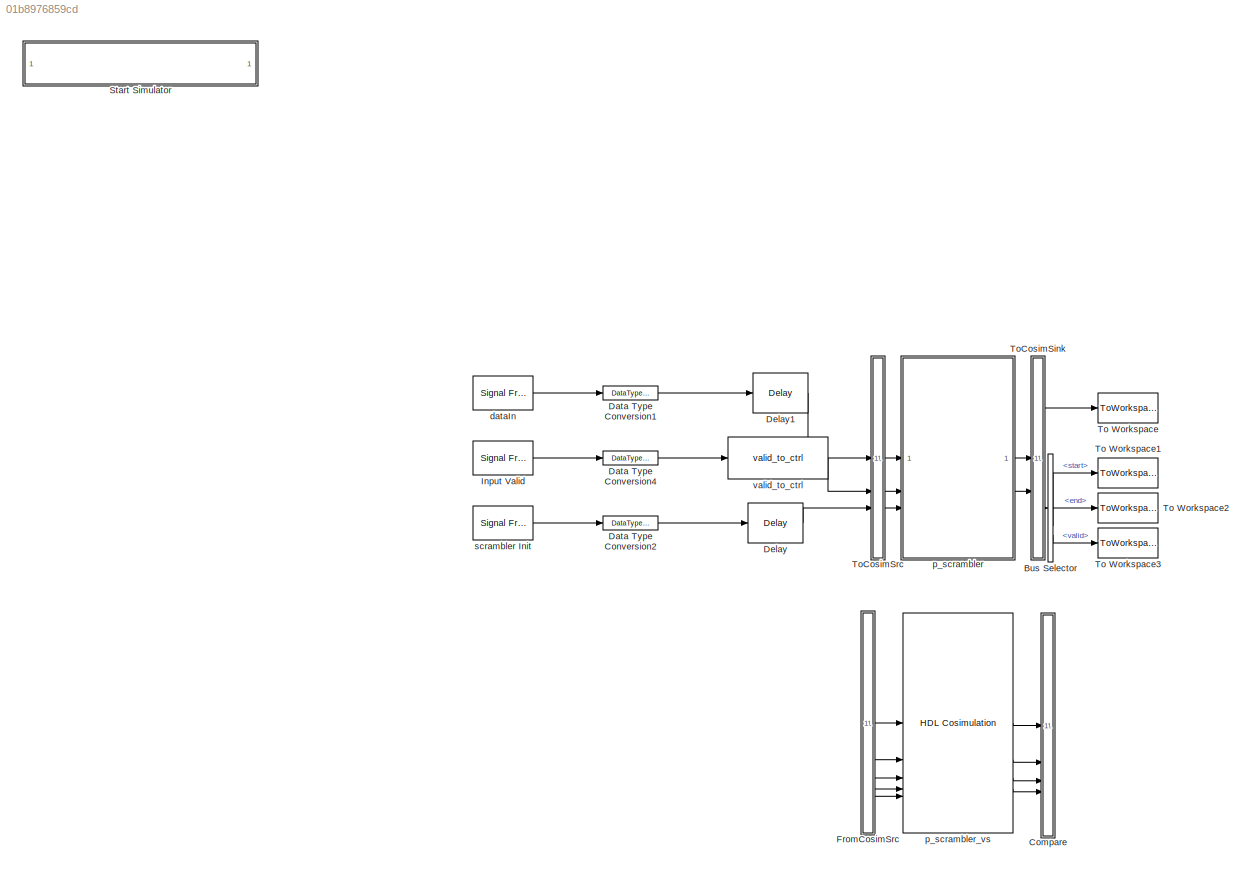
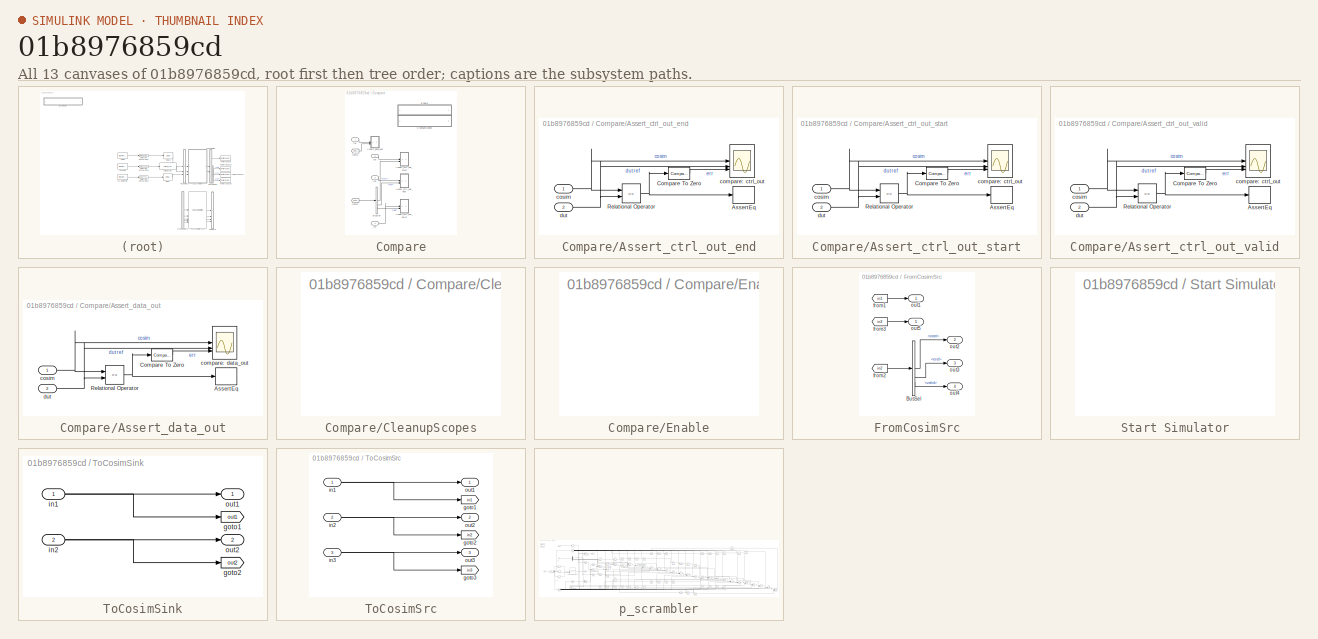
[diagram: thumbnail index - all 13 canvases of the model, root first then tree order]
MODEL slx_01b8976859cd
KIND model
CONFIG AbsTol = auto
CONFIG EnableMultiTasking = off
CONFIG FixedStep = auto
CONFIG MaxStep = auto
CONFIG MinStep = auto
CONFIG RelTol = 1e-3
CONFIG SampleTimeConstraint = Unconstrained
CONFIG SolverName = VariableStepAuto
CONFIG StartTime = 0.0
CONFIG StopTime = 10.0
BLOCK [BusSelector] Bus Selector
  OutputSignals = start,end,valid
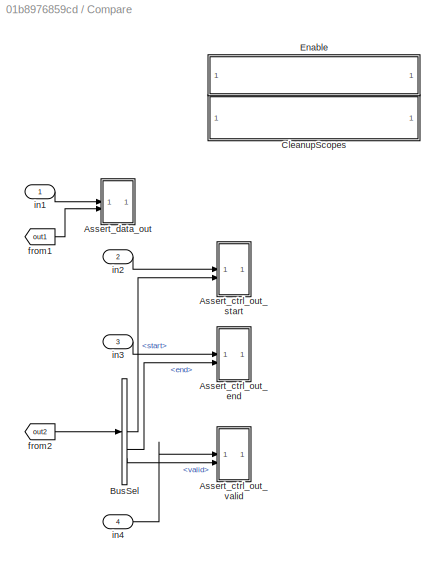
BLOCK [SubSystem] Compare
BLOCK [SubSystem] Compare/Assert_ctrl_out_end
  LibrarySourceBlock = hdlmdlgenlib/AssertEq
BLOCK [Assertion] Compare/Assert_ctrl_out_end/AssertEq
BLOCK [Reference] Compare/Assert_ctrl_out_end/Compare To Zero  REF=simulink/Logic and Bit
Operations/Compare
To Zero
  SourceBlock = simulink/Logic and Bit\nOperations/Compare\nTo Zero
  SourceType = Compare To Zero
BLOCK [RelationalOperator] Compare/Assert_ctrl_out_end/Relational Operator
  InputSameDT = off
  Operator = ==
  OutDataTypeStr = boolean
BLOCK [Scope] Compare/Assert_ctrl_out_end/compare: ctrl_out
  Floating = off
  NumInputPorts = 3
  ScopeSpecificationString = Simulink.scopes.TimeScopeBlockCfg('CurrentConfiguration', extmgr.ConfigurationSet(extmgr.Configuration('Core','General UI',true,'MessageLogAutoOpenMode','for warn/fail messages','ShowCloseAll',true,'ShowBringAllForward',true),extmgr.Configuration('Core','Source UI',true,'PlaybackToolbar',true),extmgr.Configuration('Sources','WiredSimulink',true,'PointsPerSignal',50000,'DataLoggingDecimation','1','...<+3577ch>  <repeated x4 — deduplicated; at blocks: compare: ctrl_out, compare: data_out>
BLOCK [Inport] Compare/Assert_ctrl_out_end/cosim
BLOCK [Inport] Compare/Assert_ctrl_out_end/dut
  Port = 2
BLOCK [SubSystem] Compare/Assert_ctrl_out_start
  LibrarySourceBlock = hdlmdlgenlib/AssertEq
BLOCK [Assertion] Compare/Assert_ctrl_out_start/AssertEq
BLOCK [Reference] Compare/Assert_ctrl_out_start/Compare To Zero  REF=simulink/Logic and Bit
Operations/Compare
To Zero
  SourceBlock = simulink/Logic and Bit\nOperations/Compare\nTo Zero
  SourceType = Compare To Zero
BLOCK [RelationalOperator] Compare/Assert_ctrl_out_start/Relational Operator
  InputSameDT = off
  Operator = ==
  OutDataTypeStr = boolean
BLOCK [Scope] Compare/Assert_ctrl_out_start/compare: ctrl_out
  Floating = off
  NumInputPorts = 3
BLOCK [Inport] Compare/Assert_ctrl_out_start/cosim
BLOCK [Inport] Compare/Assert_ctrl_out_start/dut
  Port = 2
BLOCK [SubSystem] Compare/Assert_ctrl_out_valid
  LibrarySourceBlock = hdlmdlgenlib/AssertEq
BLOCK [Assertion] Compare/Assert_ctrl_out_valid/AssertEq
BLOCK [Reference] Compare/Assert_ctrl_out_valid/Compare To Zero  REF=simulink/Logic and Bit
Operations/Compare
To Zero
  SourceBlock = simulink/Logic and Bit\nOperations/Compare\nTo Zero
  SourceType = Compare To Zero
BLOCK [RelationalOperator] Compare/Assert_ctrl_out_valid/Relational Operator
  InputSameDT = off
  Operator = ==
  OutDataTypeStr = boolean
BLOCK [Scope] Compare/Assert_ctrl_out_valid/compare: ctrl_out
  Floating = off
  NumInputPorts = 3
BLOCK [Inport] Compare/Assert_ctrl_out_valid/cosim
BLOCK [Inport] Compare/Assert_ctrl_out_valid/dut
  Port = 2
BLOCK [SubSystem] Compare/Assert_data_out
  LibrarySourceBlock = hdlmdlgenlib/AssertEq
BLOCK [Assertion] Compare/Assert_data_out/AssertEq
BLOCK [Reference] Compare/Assert_data_out/Compare To Zero  REF=simulink/Logic and Bit
Operations/Compare
To Zero
  SourceBlock = simulink/Logic and Bit\nOperations/Compare\nTo Zero
  SourceType = Compare To Zero
BLOCK [RelationalOperator] Compare/Assert_data_out/Relational Operator
  InputSameDT = off
  Operator = ==
  OutDataTypeStr = boolean
BLOCK [Scope] Compare/Assert_data_out/compare: data_out
  Floating = off
  NumInputPorts = 3
BLOCK [Inport] Compare/Assert_data_out/cosim
BLOCK [Inport] Compare/Assert_data_out/dut
  Port = 2
BLOCK [BusSelector] Compare/BusSel
  OutputSignals = start,end,valid
BLOCK [SubSystem] Compare/CleanupScopes
  OpenFcn = blkName = gcb; %self block\nidx = regexp(blkName, '/CleanupScopes$', 'once');\nblkParent = blkName(1:idx-1);\nblks=find_system(blkParent, 'LookUnderMasks', 'all','blocktype', 'Scope');\nfor itr = 1:length(blks)\n	 hScopeCfg = get_param(blks{itr},'ScopeConfiguration');\n	 hScopeCfg.Visible = ~ hScopeCfg.Visible;\nend\ndrawnow;
BLOCK [SubSystem] Compare/Enable
  OpenFcn = blkName = gcb;\nidx = regexp(blkName, '/Enable$', 'once');\nblkParent = blkName(1:idx-1);\nblks=find_system(blkParent, 'LookUnderMasks', 'all','blocktype', 'Assertion');\ne = get_param(blks{1}, 'Enabled');\nif strcmp(e, 'on'), f= 'off';, else, f = 'on';, end\nfor ii=1:length(blks), set_param(blks{ii}, 'Enabled', f);, end\nset_param(gcb, 'MaskDisplay',['fprintf(message(''hdlcoder:cosim:vnl_dblclick_assert...<+47ch>
BLOCK [From] Compare/from1
  GotoTag = out1
  TagVisibility = global
BLOCK [From] Compare/from2
  GotoTag = out2
  TagVisibility = global
BLOCK [Inport] Compare/in1
BLOCK [Inport] Compare/in2
  Port = 2
BLOCK [Inport] Compare/in3
  Port = 3
BLOCK [Inport] Compare/in4
  Port = 4
BLOCK [DataTypeConversion] Data Type Conversion1
  OutDataTypeStr = boolean
  RndMeth = Floor
  SaturateOnIntegerOverflow = off
BLOCK [DataTypeConversion] Data Type Conversion2
  OutDataTypeStr = boolean
  RndMeth = Floor
  SaturateOnIntegerOverflow = off
BLOCK [DataTypeConversion] Data Type Conversion4
  OutDataTypeStr = boolean
  RndMeth = Floor
  SaturateOnIntegerOverflow = off
BLOCK [Delay] Delay
  DelayLength = 1
  InitialCondition = 0
  InputPortMap = u0
  UseCircularBuffer = on
  UserDataPersistent = on
BLOCK [Delay] Delay1
  DelayLength = 1
  InitialCondition = 0
  InputPortMap = u0
  UseCircularBuffer = on
  UserDataPersistent = on
BLOCK [SubSystem] FromCosimSrc
BLOCK [BusSelector] FromCosimSrc/BusSel
  OutputSignals = start,end,valid
BLOCK [From] FromCosimSrc/from1
  GotoTag = in1
  TagVisibility = global
BLOCK [From] FromCosimSrc/from2
  GotoTag = in2
  TagVisibility = global
BLOCK [From] FromCosimSrc/from3
  GotoTag = in3
  TagVisibility = global
BLOCK [Outport] FromCosimSrc/out1
BLOCK [Outport] FromCosimSrc/out2
  Port = 2
BLOCK [Outport] FromCosimSrc/out3
  Port = 3
BLOCK [Outport] FromCosimSrc/out4
  Port = 4
BLOCK [Outport] FromCosimSrc/out5
  Port = 5
BLOCK [Reference] Input Valid  REF=dspsrcs4/Signal From
Workspace
  SourceBlock = dspsrcs4/Signal From\nWorkspace
  SourceType = Signal From Workspace
BLOCK [SubSystem] Start Simulator
  OpenFcn = cosimDirName = pwd;\ncd 'hdl_prj/hdlsrc/HDLPayloadScrambler';\n[s,r] = system('vivado -mode batch -source gm_HDLPayloadScrambler_vs.tcl','-echo');\ncd (cosimDirName);\nclear cosimDirName;\nif s\n   error('Failed to create Vivado HDL design DLL using script gm_HDLPayloadScrambler_vs.tcl.');\nend
BLOCK [ToWorkspace] To Workspace
  MaxDataPoints = inf
  SampleTime = 1/fs
  Save2DSignal = 2-D array (concatenate along first dimension)
  VariableName = dataOut
BLOCK [ToWorkspace] To Workspace1
  MaxDataPoints = inf
  SampleTime = 1/fs
  Save2DSignal = 2-D array (concatenate along first dimension)
  VariableName = startOut
BLOCK [ToWorkspace] To Workspace2
  MaxDataPoints = inf
  SampleTime = 1/fs
  Save2DSignal = 2-D array (concatenate along first dimension)
  VariableName = endOut
BLOCK [ToWorkspace] To Workspace3
  MaxDataPoints = inf
  SampleTime = 1/fs
  Save2DSignal = 2-D array (concatenate along first dimension)
  VariableName = validOut
BLOCK [SubSystem] ToCosimSink
BLOCK [Goto] ToCosimSink/goto1
  GotoTag = out1
  TagVisibility = global
BLOCK [Goto] ToCosimSink/goto2
  GotoTag = out2
  TagVisibility = global
BLOCK [Inport] ToCosimSink/in1
BLOCK [Inport] ToCosimSink/in2
  Port = 2
BLOCK [Outport] ToCosimSink/out1
BLOCK [Outport] ToCosimSink/out2
  Port = 2
BLOCK [SubSystem] ToCosimSrc
BLOCK [Goto] ToCosimSrc/goto1
  GotoTag = in1
  TagVisibility = global
BLOCK [Goto] ToCosimSrc/goto2
  GotoTag = in2
  TagVisibility = global
BLOCK [Goto] ToCosimSrc/goto3
  GotoTag = in3
  TagVisibility = global
BLOCK [Inport] ToCosimSrc/in1
BLOCK [Inport] ToCosimSrc/in2
  Port = 2
BLOCK [Inport] ToCosimSrc/in3
  Port = 3
BLOCK [Outport] ToCosimSrc/out1
BLOCK [Outport] ToCosimSrc/out2
  Port = 2
BLOCK [Outport] ToCosimSrc/out3
  Port = 3
BLOCK [Reference] dataIn  REF=dspsrcs4/Signal From
Workspace
  SourceBlock = dspsrcs4/Signal From\nWorkspace
  SourceType = Signal From Workspace
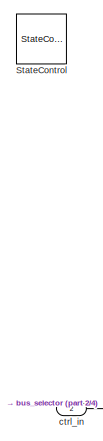
[diagram: p_scrambler - part 1/4, top left region]
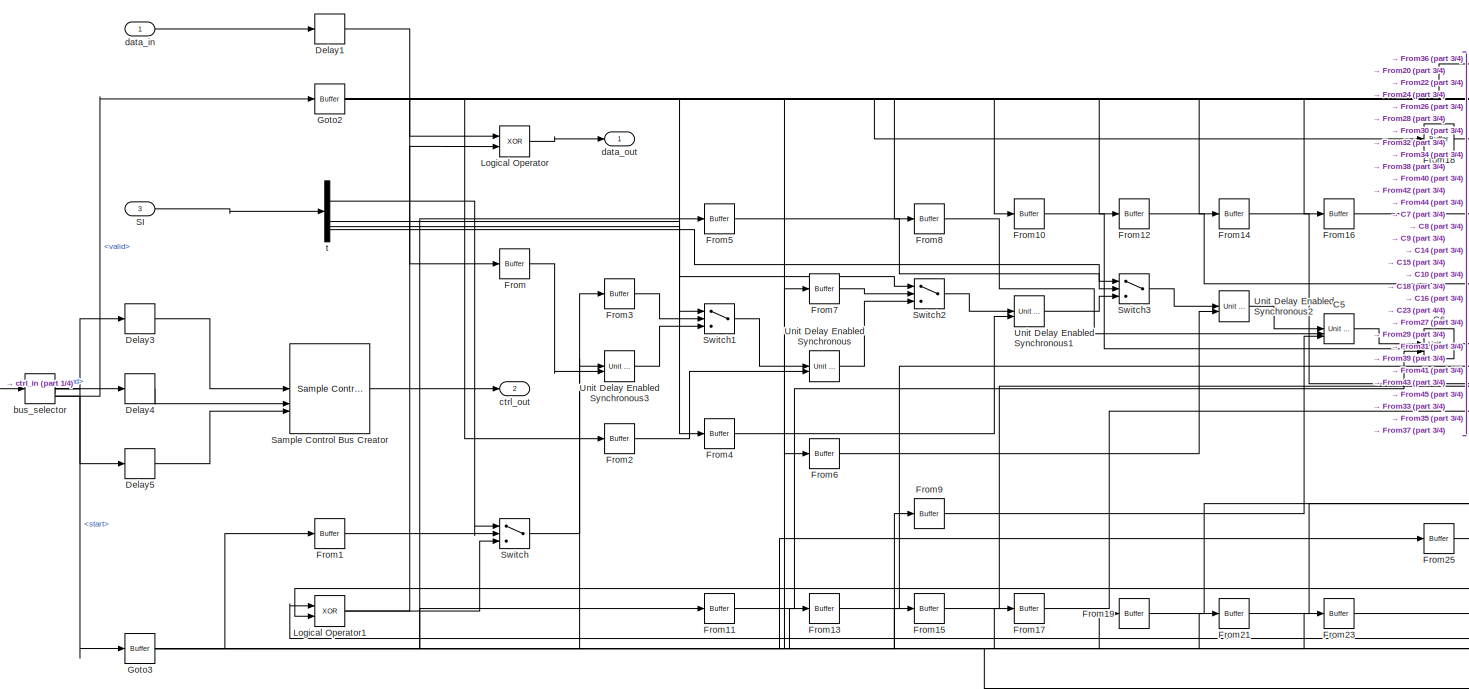
[diagram: p_scrambler - part 2/4, left side, full height]
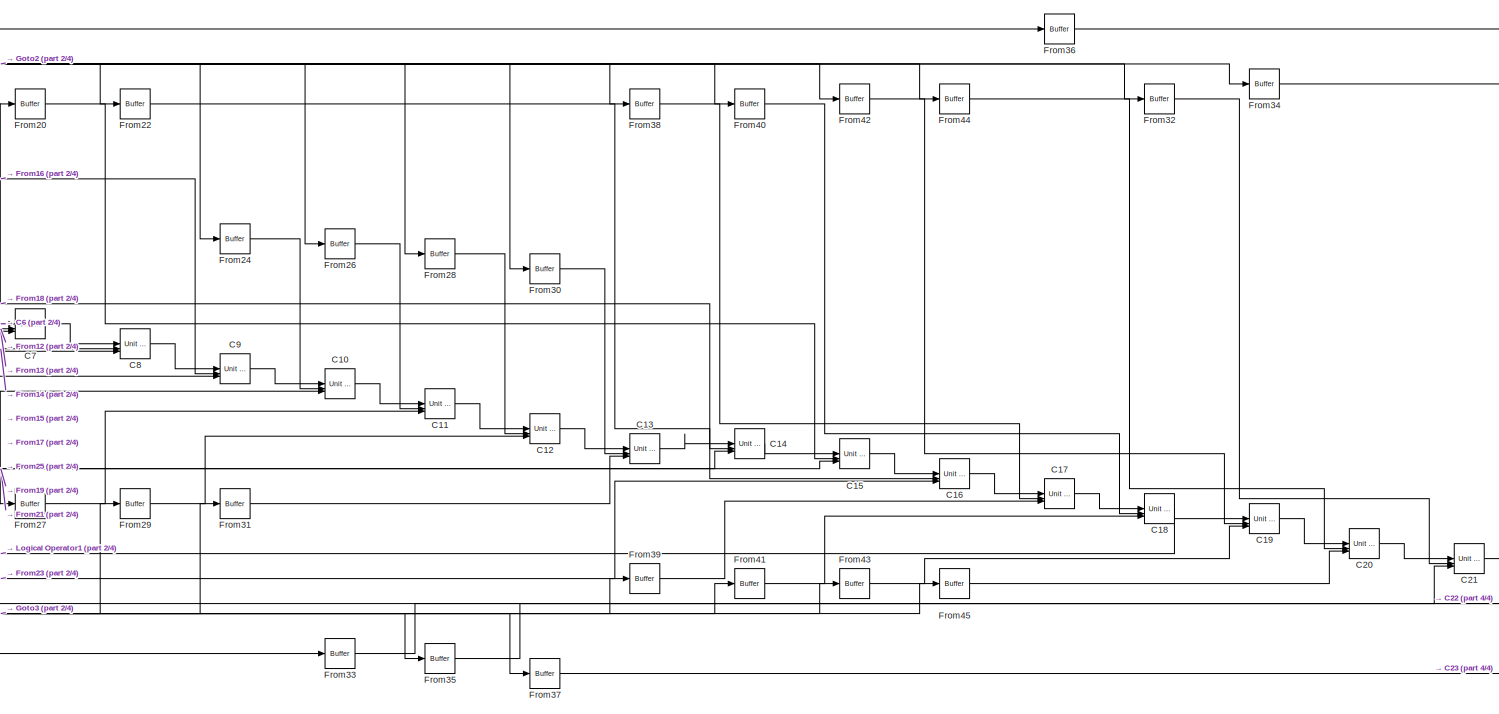
[diagram: p_scrambler - part 3/4, right side, full height]
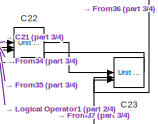
[diagram: p_scrambler - part 4/4, bottom right region]
BLOCK [SubSystem] p_scrambler
BLOCK [Reference] p_scrambler/C10  REF=hdlsllib/Discrete/Unit Delay Enabled Resettable
Synchronous
  SourceBlock = hdlsllib/Discrete/Unit Delay Enabled Resettable\nSynchronous
  SourceType = Unit Delay Enabled Resettable Synchronous
BLOCK [Reference] p_scrambler/C11  REF=hdlsllib/Discrete/Unit Delay Enabled Resettable
Synchronous
  SourceBlock = hdlsllib/Discrete/Unit Delay Enabled Resettable\nSynchronous
  SourceType = Unit Delay Enabled Resettable Synchronous
BLOCK [Reference] p_scrambler/C12  REF=hdlsllib/Discrete/Unit Delay Enabled Resettable
Synchronous
  SourceBlock = hdlsllib/Discrete/Unit Delay Enabled Resettable\nSynchronous
  SourceType = Unit Delay Enabled Resettable Synchronous
BLOCK [Reference] p_scrambler/C13  REF=hdlsllib/Discrete/Unit Delay Enabled Resettable
Synchronous
  SourceBlock = hdlsllib/Discrete/Unit Delay Enabled Resettable\nSynchronous
  SourceType = Unit Delay Enabled Resettable Synchronous
BLOCK [Reference] p_scrambler/C14  REF=hdlsllib/Discrete/Unit Delay Enabled Resettable
Synchronous
  SourceBlock = hdlsllib/Discrete/Unit Delay Enabled Resettable\nSynchronous
  SourceType = Unit Delay Enabled Resettable Synchronous
BLOCK [Reference] p_scrambler/C15  REF=hdlsllib/Discrete/Unit Delay Enabled Resettable
Synchronous
  SourceBlock = hdlsllib/Discrete/Unit Delay Enabled Resettable\nSynchronous
  SourceType = Unit Delay Enabled Resettable Synchronous
BLOCK [Reference] p_scrambler/C16  REF=hdlsllib/Discrete/Unit Delay Enabled Resettable
Synchronous
  SourceBlock = hdlsllib/Discrete/Unit Delay Enabled Resettable\nSynchronous
  SourceType = Unit Delay Enabled Resettable Synchronous
BLOCK [Reference] p_scrambler/C17  REF=hdlsllib/Discrete/Unit Delay Enabled Resettable
Synchronous
  SourceBlock = hdlsllib/Discrete/Unit Delay Enabled Resettable\nSynchronous
  SourceType = Unit Delay Enabled Resettable Synchronous
BLOCK [Reference] p_scrambler/C18  REF=hdlsllib/Discrete/Unit Delay Enabled Resettable
Synchronous
  SourceBlock = hdlsllib/Discrete/Unit Delay Enabled Resettable\nSynchronous
  SourceType = Unit Delay Enabled Resettable Synchronous
BLOCK [Reference] p_scrambler/C19  REF=hdlsllib/Discrete/Unit Delay Enabled Resettable
Synchronous
  SourceBlock = hdlsllib/Discrete/Unit Delay Enabled Resettable\nSynchronous
  SourceType = Unit Delay Enabled Resettable Synchronous
BLOCK [Reference] p_scrambler/C20  REF=hdlsllib/Discrete/Unit Delay Enabled Resettable
Synchronous
  SourceBlock = hdlsllib/Discrete/Unit Delay Enabled Resettable\nSynchronous
  SourceType = Unit Delay Enabled Resettable Synchronous
BLOCK [Reference] p_scrambler/C21  REF=hdlsllib/Discrete/Unit Delay Enabled Resettable
Synchronous
  SourceBlock = hdlsllib/Discrete/Unit Delay Enabled Resettable\nSynchronous
  SourceType = Unit Delay Enabled Resettable Synchronous
BLOCK [Reference] p_scrambler/C22  REF=hdlsllib/Discrete/Unit Delay Enabled Resettable
Synchronous
  SourceBlock = hdlsllib/Discrete/Unit Delay Enabled Resettable\nSynchronous
  SourceType = Unit Delay Enabled Resettable Synchronous
BLOCK [Reference] p_scrambler/C23  REF=hdlsllib/Discrete/Unit Delay Enabled Resettable
Synchronous
  SourceBlock = hdlsllib/Discrete/Unit Delay Enabled Resettable\nSynchronous
  SourceType = Unit Delay Enabled Resettable Synchronous
BLOCK [Reference] p_scrambler/C5  REF=hdlsllib/Discrete/Unit Delay Enabled Resettable
Synchronous
  SourceBlock = hdlsllib/Discrete/Unit Delay Enabled Resettable\nSynchronous
  SourceType = Unit Delay Enabled Resettable Synchronous
BLOCK [Reference] p_scrambler/C6  REF=hdlsllib/Discrete/Unit Delay Enabled Resettable
Synchronous
  SourceBlock = hdlsllib/Discrete/Unit Delay Enabled Resettable\nSynchronous
  SourceType = Unit Delay Enabled Resettable Synchronous
BLOCK [Reference] p_scrambler/C7  REF=hdlsllib/Discrete/Unit Delay Enabled Resettable
Synchronous
  SourceBlock = hdlsllib/Discrete/Unit Delay Enabled Resettable\nSynchronous
  SourceType = Unit Delay Enabled Resettable Synchronous
BLOCK [Reference] p_scrambler/C8  REF=hdlsllib/Discrete/Unit Delay Enabled Resettable
Synchronous
  SourceBlock = hdlsllib/Discrete/Unit Delay Enabled Resettable\nSynchronous
  SourceType = Unit Delay Enabled Resettable Synchronous
BLOCK [Reference] p_scrambler/C9  REF=hdlsllib/Discrete/Unit Delay Enabled Resettable
Synchronous
  SourceBlock = hdlsllib/Discrete/Unit Delay Enabled Resettable\nSynchronous
  SourceType = Unit Delay Enabled Resettable Synchronous
BLOCK [Delay] p_scrambler/Delay1
  DelayLength = double(1)
  InitialCondition = 0
  InputPortMap = u0
  SampleTime = 1
BLOCK [Delay] p_scrambler/Delay3
  DelayLength = double(1)
  InitialCondition = 0
  InputPortMap = u0
  SampleTime = 1
BLOCK [Delay] p_scrambler/Delay4
  DelayLength = double(1)
  InitialCondition = 0
  InputPortMap = u0
  SampleTime = 1
BLOCK [Delay] p_scrambler/Delay5
  DelayLength = double(1)
  InitialCondition = 0
  InputPortMap = u0
  SampleTime = 1
BLOCK [Reference] p_scrambler/From  REF=hdlmdlgenlib/Buffer
  SourceBlock = hdlmdlgenlib/Buffer
  SourceType = Buffer/Wire
BLOCK [Reference] p_scrambler/From1  REF=hdlmdlgenlib/Buffer
  SourceBlock = hdlmdlgenlib/Buffer
  SourceType = Buffer/Wire
BLOCK [Reference] p_scrambler/From10  REF=hdlmdlgenlib/Buffer
  SourceBlock = hdlmdlgenlib/Buffer
  SourceType = Buffer/Wire
BLOCK [Reference] p_scrambler/From11  REF=hdlmdlgenlib/Buffer
  SourceBlock = hdlmdlgenlib/Buffer
  SourceType = Buffer/Wire
BLOCK [Reference] p_scrambler/From12  REF=hdlmdlgenlib/Buffer
  SourceBlock = hdlmdlgenlib/Buffer
  SourceType = Buffer/Wire
BLOCK [Reference] p_scrambler/From13  REF=hdlmdlgenlib/Buffer
  SourceBlock = hdlmdlgenlib/Buffer
  SourceType = Buffer/Wire
BLOCK [Reference] p_scrambler/From14  REF=hdlmdlgenlib/Buffer
  SourceBlock = hdlmdlgenlib/Buffer
  SourceType = Buffer/Wire
BLOCK [Reference] p_scrambler/From15  REF=hdlmdlgenlib/Buffer
  SourceBlock = hdlmdlgenlib/Buffer
  SourceType = Buffer/Wire
BLOCK [Reference] p_scrambler/From16  REF=hdlmdlgenlib/Buffer
  SourceBlock = hdlmdlgenlib/Buffer
  SourceType = Buffer/Wire
BLOCK [Reference] p_scrambler/From17  REF=hdlmdlgenlib/Buffer
  SourceBlock = hdlmdlgenlib/Buffer
  SourceType = Buffer/Wire
BLOCK [Reference] p_scrambler/From18  REF=hdlmdlgenlib/Buffer
  SourceBlock = hdlmdlgenlib/Buffer
  SourceType = Buffer/Wire
BLOCK [Reference] p_scrambler/From19  REF=hdlmdlgenlib/Buffer
  SourceBlock = hdlmdlgenlib/Buffer
  SourceType = Buffer/Wire
BLOCK [Reference] p_scrambler/From2  REF=hdlmdlgenlib/Buffer
  SourceBlock = hdlmdlgenlib/Buffer
  SourceType = Buffer/Wire
BLOCK [Reference] p_scrambler/From20  REF=hdlmdlgenlib/Buffer
  SourceBlock = hdlmdlgenlib/Buffer
  SourceType = Buffer/Wire
BLOCK [Reference] p_scrambler/From21  REF=hdlmdlgenlib/Buffer
  SourceBlock = hdlmdlgenlib/Buffer
  SourceType = Buffer/Wire
BLOCK [Reference] p_scrambler/From22  REF=hdlmdlgenlib/Buffer
  SourceBlock = hdlmdlgenlib/Buffer
  SourceType = Buffer/Wire
BLOCK [Reference] p_scrambler/From23  REF=hdlmdlgenlib/Buffer
  SourceBlock = hdlmdlgenlib/Buffer
  SourceType = Buffer/Wire
BLOCK [Reference] p_scrambler/From24  REF=hdlmdlgenlib/Buffer
  SourceBlock = hdlmdlgenlib/Buffer
  SourceType = Buffer/Wire
BLOCK [Reference] p_scrambler/From25  REF=hdlmdlgenlib/Buffer
  SourceBlock = hdlmdlgenlib/Buffer
  SourceType = Buffer/Wire
BLOCK [Reference] p_scrambler/From26  REF=hdlmdlgenlib/Buffer
  SourceBlock = hdlmdlgenlib/Buffer
  SourceType = Buffer/Wire
BLOCK [Reference] p_scrambler/From27  REF=hdlmdlgenlib/Buffer
  SourceBlock = hdlmdlgenlib/Buffer
  SourceType = Buffer/Wire
BLOCK [Reference] p_scrambler/From28  REF=hdlmdlgenlib/Buffer
  SourceBlock = hdlmdlgenlib/Buffer
  SourceType = Buffer/Wire
BLOCK [Reference] p_scrambler/From29  REF=hdlmdlgenlib/Buffer
  SourceBlock = hdlmdlgenlib/Buffer
  SourceType = Buffer/Wire
BLOCK [Reference] p_scrambler/From3  REF=hdlmdlgenlib/Buffer
  SourceBlock = hdlmdlgenlib/Buffer
  SourceType = Buffer/Wire
BLOCK [Reference] p_scrambler/From30  REF=hdlmdlgenlib/Buffer
  SourceBlock = hdlmdlgenlib/Buffer
  SourceType = Buffer/Wire
BLOCK [Reference] p_scrambler/From31  REF=hdlmdlgenlib/Buffer
  SourceBlock = hdlmdlgenlib/Buffer
  SourceType = Buffer/Wire
BLOCK [Reference] p_scrambler/From32  REF=hdlmdlgenlib/Buffer
  SourceBlock = hdlmdlgenlib/Buffer
  SourceType = Buffer/Wire
BLOCK [Reference] p_scrambler/From33  REF=hdlmdlgenlib/Buffer
  SourceBlock = hdlmdlgenlib/Buffer
  SourceType = Buffer/Wire
BLOCK [Reference] p_scrambler/From34  REF=hdlmdlgenlib/Buffer
  SourceBlock = hdlmdlgenlib/Buffer
  SourceType = Buffer/Wire
BLOCK [Reference] p_scrambler/From35  REF=hdlmdlgenlib/Buffer
  SourceBlock = hdlmdlgenlib/Buffer
  SourceType = Buffer/Wire
BLOCK [Reference] p_scrambler/From36  REF=hdlmdlgenlib/Buffer
  SourceBlock = hdlmdlgenlib/Buffer
  SourceType = Buffer/Wire
BLOCK [Reference] p_scrambler/From37  REF=hdlmdlgenlib/Buffer
  SourceBlock = hdlmdlgenlib/Buffer
  SourceType = Buffer/Wire
BLOCK [Reference] p_scrambler/From38  REF=hdlmdlgenlib/Buffer
  SourceBlock = hdlmdlgenlib/Buffer
  SourceType = Buffer/Wire
BLOCK [Reference] p_scrambler/From39  REF=hdlmdlgenlib/Buffer
  SourceBlock = hdlmdlgenlib/Buffer
  SourceType = Buffer/Wire
BLOCK [Reference] p_scrambler/From4  REF=hdlmdlgenlib/Buffer
  SourceBlock = hdlmdlgenlib/Buffer
  SourceType = Buffer/Wire
BLOCK [Reference] p_scrambler/From40  REF=hdlmdlgenlib/Buffer
  SourceBlock = hdlmdlgenlib/Buffer
  SourceType = Buffer/Wire
BLOCK [Reference] p_scrambler/From41  REF=hdlmdlgenlib/Buffer
  SourceBlock = hdlmdlgenlib/Buffer
  SourceType = Buffer/Wire
BLOCK [Reference] p_scrambler/From42  REF=hdlmdlgenlib/Buffer
  SourceBlock = hdlmdlgenlib/Buffer
  SourceType = Buffer/Wire
BLOCK [Reference] p_scrambler/From43  REF=hdlmdlgenlib/Buffer
  SourceBlock = hdlmdlgenlib/Buffer
  SourceType = Buffer/Wire
BLOCK [Reference] p_scrambler/From44  REF=hdlmdlgenlib/Buffer
  SourceBlock = hdlmdlgenlib/Buffer
  SourceType = Buffer/Wire
BLOCK [Reference] p_scrambler/From45  REF=hdlmdlgenlib/Buffer
  SourceBlock = hdlmdlgenlib/Buffer
  SourceType = Buffer/Wire
BLOCK [Reference] p_scrambler/From5  REF=hdlmdlgenlib/Buffer
  SourceBlock = hdlmdlgenlib/Buffer
  SourceType = Buffer/Wire
BLOCK [Reference] p_scrambler/From6  REF=hdlmdlgenlib/Buffer
  SourceBlock = hdlmdlgenlib/Buffer
  SourceType = Buffer/Wire
BLOCK [Reference] p_scrambler/From7  REF=hdlmdlgenlib/Buffer
  SourceBlock = hdlmdlgenlib/Buffer
  SourceType = Buffer/Wire
BLOCK [Reference] p_scrambler/From8  REF=hdlmdlgenlib/Buffer
  SourceBlock = hdlmdlgenlib/Buffer
  SourceType = Buffer/Wire
BLOCK [Reference] p_scrambler/From9  REF=hdlmdlgenlib/Buffer
  SourceBlock = hdlmdlgenlib/Buffer
  SourceType = Buffer/Wire
BLOCK [Reference] p_scrambler/Goto2  REF=hdlmdlgenlib/Buffer
  SourceBlock = hdlmdlgenlib/Buffer
  SourceType = Buffer/Wire
BLOCK [Reference] p_scrambler/Goto3  REF=hdlmdlgenlib/Buffer
  SourceBlock = hdlmdlgenlib/Buffer
  SourceType = Buffer/Wire
BLOCK [Logic] p_scrambler/Logical Operator
  AllPortsSameDT = off
  Operator = XOR
  OutDataTypeStr = boolean
  SampleTime = 1
BLOCK [Logic] p_scrambler/Logical Operator1
  AllPortsSameDT = off
  Operator = XOR
  OutDataTypeStr = boolean
  SampleTime = 1
BLOCK [Inport] p_scrambler/SI
  OutDataTypeStr = boolean
  Port = 3
  PortDimensions = [1 4]
  SampleTime = 1
BLOCK [Reference] p_scrambler/Sample Control Bus Creator  REF=whdlutilities/Sample Control
Bus Creator
  SourceBlock = whdlutilities/Sample Control\nBus Creator
  SourceType = Sample Control Bus Creator
BLOCK [StateControl] p_scrambler/StateControl
  StateControl = Synchronous
BLOCK [Switch] p_scrambler/Switch
  Criteria = u2 ~= 0
  InputSameDT = off
  OutDataTypeStr = boolean
  SampleTime = 1
  SaturateOnIntegerOverflow = off
  Threshold = double(0)
BLOCK [Switch] p_scrambler/Switch1
  Criteria = u2 ~= 0
  InputSameDT = off
  OutDataTypeStr = boolean
  SampleTime = 1
  SaturateOnIntegerOverflow = off
  Threshold = double(0)
BLOCK [Switch] p_scrambler/Switch2
  Criteria = u2 ~= 0
  InputSameDT = off
  OutDataTypeStr = boolean
  SampleTime = 1
  SaturateOnIntegerOverflow = off
  Threshold = double(0)
BLOCK [Switch] p_scrambler/Switch3
  Criteria = u2 ~= 0
  InputSameDT = off
  OutDataTypeStr = boolean
  SampleTime = 1
  SaturateOnIntegerOverflow = off
  Threshold = double(0)
BLOCK [Reference] p_scrambler/Unit Delay Enabled Synchronous  REF=hdlsllib/Discrete/Unit Delay Enabled
Synchronous
  SourceBlock = hdlsllib/Discrete/Unit Delay Enabled\nSynchronous
  SourceType = Unit Delay Enabled Synchronous
BLOCK [Reference] p_scrambler/Unit Delay Enabled Synchronous1  REF=hdlsllib/Discrete/Unit Delay Enabled
Synchronous
  SourceBlock = hdlsllib/Discrete/Unit Delay Enabled\nSynchronous
  SourceType = Unit Delay Enabled Synchronous
BLOCK [Reference] p_scrambler/Unit Delay Enabled Synchronous2  REF=hdlsllib/Discrete/Unit Delay Enabled
Synchronous
  SourceBlock = hdlsllib/Discrete/Unit Delay Enabled\nSynchronous
  SourceType = Unit Delay Enabled Synchronous
BLOCK [Reference] p_scrambler/Unit Delay Enabled Synchronous3  REF=hdlsllib/Discrete/Unit Delay Enabled
Synchronous
  SourceBlock = hdlsllib/Discrete/Unit Delay Enabled\nSynchronous
  SourceType = Unit Delay Enabled Synchronous
BLOCK [BusSelector] p_scrambler/bus_selector
  OutputSignals = start,end,valid
BLOCK [Inport] p_scrambler/ctrl_in
  Port = 2
  SampleTime = 1
BLOCK [Outport] p_scrambler/ctrl_out
  Port = 2
  SampleTime = 1
BLOCK [Inport] p_scrambler/data_in
  OutDataTypeStr = boolean
  SampleTime = 1
BLOCK [Outport] p_scrambler/data_out
  SampleTime = 1
BLOCK [Demux] p_scrambler/t
BLOCK [Reference] p_scrambler_vs  REF=vivadosimlib/HDL Cosimulation
  SourceBlock = vivadosimlib/HDL Cosimulation
  SourceType = Simulink and Vivado Simulator Cosimulation
  UserDataPersistent = on
BLOCK [Reference] scrambler Init  REF=dspsrcs4/Signal From
Workspace
  SourceBlock = dspsrcs4/Signal From\nWorkspace
  SourceType = Signal From Workspace
BLOCK [Reference] valid_to_ctrl  REF=HDL_ieee_8021513/valid_to_ctrl
  SourceBlock = HDL_ieee_8021513/valid_to_ctrl
  SourceProductName = HDL IEEE 8021513
  SourceType = SubSystem
LINE Bus Selector:1 -> To Workspace1:1
LINE Bus Selector:2 -> To Workspace2:1
LINE Bus Selector:3 -> To Workspace3:1
LINE Compare/Assert_ctrl_out_end/Compare To Zero:1 -> Compare/Assert_ctrl_out_end/compare: ctrl_out:3
NET Compare/Assert_ctrl_out_end/Relational Operator:1 -> Compare/Assert_ctrl_out_end/AssertEq:1, Compare/Assert_ctrl_out_end/Compare To Zero:1
NET Compare/Assert_ctrl_out_end/cosim:1 -> Compare/Assert_ctrl_out_end/Relational Operator:1, Compare/Assert_ctrl_out_end/compare: ctrl_out:1
NET Compare/Assert_ctrl_out_end/dut:1 -> Compare/Assert_ctrl_out_end/Relational Operator:2, Compare/Assert_ctrl_out_end/compare: ctrl_out:2
LINE Compare/Assert_ctrl_out_start/Compare To Zero:1 -> Compare/Assert_ctrl_out_start/compare: ctrl_out:3
NET Compare/Assert_ctrl_out_start/Relational Operator:1 -> Compare/Assert_ctrl_out_start/AssertEq:1, Compare/Assert_ctrl_out_start/Compare To Zero:1
NET Compare/Assert_ctrl_out_start/cosim:1 -> Compare/Assert_ctrl_out_start/Relational Operator:1, Compare/Assert_ctrl_out_start/compare: ctrl_out:1
NET Compare/Assert_ctrl_out_start/dut:1 -> Compare/Assert_ctrl_out_start/Relational Operator:2, Compare/Assert_ctrl_out_start/compare: ctrl_out:2
LINE Compare/Assert_ctrl_out_valid/Compare To Zero:1 -> Compare/Assert_ctrl_out_valid/compare: ctrl_out:3
NET Compare/Assert_ctrl_out_valid/Relational Operator:1 -> Compare/Assert_ctrl_out_valid/AssertEq:1, Compare/Assert_ctrl_out_valid/Compare To Zero:1
NET Compare/Assert_ctrl_out_valid/cosim:1 -> Compare/Assert_ctrl_out_valid/Relational Operator:1, Compare/Assert_ctrl_out_valid/compare: ctrl_out:1
NET Compare/Assert_ctrl_out_valid/dut:1 -> Compare/Assert_ctrl_out_valid/Relational Operator:2, Compare/Assert_ctrl_out_valid/compare: ctrl_out:2
LINE Compare/Assert_data_out/Compare To Zero:1 -> Compare/Assert_data_out/compare: data_out:3
NET Compare/Assert_data_out/Relational Operator:1 -> Compare/Assert_data_out/AssertEq:1, Compare/Assert_data_out/Compare To Zero:1
NET Compare/Assert_data_out/cosim:1 -> Compare/Assert_data_out/Relational Operator:1, Compare/Assert_data_out/compare: data_out:1
NET Compare/Assert_data_out/dut:1 -> Compare/Assert_data_out/Relational Operator:2, Compare/Assert_data_out/compare: data_out:2
LINE Compare/BusSel:1 -> Compare/Assert_ctrl_out_start:2
LINE Compare/BusSel:2 -> Compare/Assert_ctrl_out_end:2
LINE Compare/BusSel:3 -> Compare/Assert_ctrl_out_valid:2
LINE Compare/from1:1 -> Compare/Assert_data_out:2
LINE Compare/from2:1 -> Compare/BusSel:1
LINE Compare/in1:1 -> Compare/Assert_data_out:1
LINE Compare/in2:1 -> Compare/Assert_ctrl_out_start:1
LINE Compare/in3:1 -> Compare/Assert_ctrl_out_end:1
LINE Compare/in4:1 -> Compare/Assert_ctrl_out_valid:1
LINE Data Type Conversion1:1 -> Delay1:1
LINE Data Type Conversion2:1 -> Delay:1
LINE Data Type Conversion4:1 -> valid_to_ctrl:1
LINE Delay1:1 -> ToCosimSrc:1
LINE Delay:1 -> ToCosimSrc:3
LINE FromCosimSrc/BusSel:1 -> FromCosimSrc/out2:1
LINE FromCosimSrc/BusSel:2 -> FromCosimSrc/out3:1
LINE FromCosimSrc/BusSel:3 -> FromCosimSrc/out4:1
LINE FromCosimSrc/from1:1 -> FromCosimSrc/out1:1
LINE FromCosimSrc/from2:1 -> FromCosimSrc/BusSel:1
LINE FromCosimSrc/from3:1 -> FromCosimSrc/out5:1
LINE FromCosimSrc:1 -> p_scrambler_vs:1
LINE FromCosimSrc:2 -> p_scrambler_vs:2
LINE FromCosimSrc:3 -> p_scrambler_vs:3
LINE FromCosimSrc:4 -> p_scrambler_vs:4
LINE FromCosimSrc:5 -> p_scrambler_vs:5
LINE Input Valid:1 -> Data Type Conversion4:1
NET ToCosimSink/in1:1 -> ToCosimSink/goto1:1, ToCosimSink/out1:1
NET ToCosimSink/in2:1 -> ToCosimSink/goto2:1, ToCosimSink/out2:1
LINE ToCosimSink:1 -> To Workspace:1
LINE ToCosimSink:2 -> Bus Selector:1
NET ToCosimSrc/in1:1 -> ToCosimSrc/goto1:1, ToCosimSrc/out1:1
NET ToCosimSrc/in2:1 -> ToCosimSrc/goto2:1, ToCosimSrc/out2:1
NET ToCosimSrc/in3:1 -> ToCosimSrc/goto3:1, ToCosimSrc/out3:1
LINE ToCosimSrc:1 -> p_scrambler:1
LINE ToCosimSrc:2 -> p_scrambler:2
LINE ToCosimSrc:3 -> p_scrambler:3
LINE dataIn:1 -> Data Type Conversion1:1
LINE p_scrambler/C10:1 -> p_scrambler/C11:1
LINE p_scrambler/C11:1 -> p_scrambler/C12:1
LINE p_scrambler/C12:1 -> p_scrambler/C13:1
LINE p_scrambler/C13:1 -> p_scrambler/C14:1
LINE p_scrambler/C14:1 -> p_scrambler/C15:1
LINE p_scrambler/C15:1 -> p_scrambler/C16:1
LINE p_scrambler/C16:1 -> p_scrambler/C17:1
LINE p_scrambler/C17:1 -> p_scrambler/C18:1
NET p_scrambler/C18:1 -> p_scrambler/C19:1, p_scrambler/Logical Operator1:2
LINE p_scrambler/C19:1 -> p_scrambler/C20:1
LINE p_scrambler/C20:1 -> p_scrambler/C21:1
LINE p_scrambler/C21:1 -> p_scrambler/C22:1
LINE p_scrambler/C22:1 -> p_scrambler/C23:1
LINE p_scrambler/C23:1 -> p_scrambler/Logical Operator1:1
LINE p_scrambler/C5:1 -> p_scrambler/C6:1
LINE p_scrambler/C6:1 -> p_scrambler/C7:1
LINE p_scrambler/C7:1 -> p_scrambler/C8:1
LINE p_scrambler/C8:1 -> p_scrambler/C9:1
LINE p_scrambler/C9:1 -> p_scrambler/C10:1
LINE p_scrambler/Delay1:1 -> p_scrambler/Logical Operator:1
LINE p_scrambler/Delay3:1 -> p_scrambler/Sample Control Bus Creator:1
LINE p_scrambler/Delay4:1 -> p_scrambler/Sample Control Bus Creator:2
LINE p_scrambler/Delay5:1 -> p_scrambler/Sample Control Bus Creator:3
LINE p_scrambler/From10:1 -> p_scrambler/C6:2
LINE p_scrambler/From11:1 -> p_scrambler/C6:3
LINE p_scrambler/From12:1 -> p_scrambler/C7:2
LINE p_scrambler/From13:1 -> p_scrambler/C7:3
LINE p_scrambler/From14:1 -> p_scrambler/C8:2
LINE p_scrambler/From15:1 -> p_scrambler/C8:3
LINE p_scrambler/From16:1 -> p_scrambler/C9:2
LINE p_scrambler/From17:1 -> p_scrambler/C9:3
LINE p_scrambler/From18:1 -> p_scrambler/C14:2
LINE p_scrambler/From19:1 -> p_scrambler/C14:3
LINE p_scrambler/From1:1 -> p_scrambler/Switch:2
LINE p_scrambler/From20:1 -> p_scrambler/C15:2
LINE p_scrambler/From21:1 -> p_scrambler/C15:3
LINE p_scrambler/From22:1 -> p_scrambler/C16:2
LINE p_scrambler/From23:1 -> p_scrambler/C16:3
LINE p_scrambler/From24:1 -> p_scrambler/C10:2
LINE p_scrambler/From25:1 -> p_scrambler/C10:3
LINE p_scrambler/From26:1 -> p_scrambler/C11:2
LINE p_scrambler/From27:1 -> p_scrambler/C11:3
LINE p_scrambler/From28:1 -> p_scrambler/C12:2
LINE p_scrambler/From29:1 -> p_scrambler/C12:3
LINE p_scrambler/From2:1 -> p_scrambler/Unit Delay Enabled Synchronous:2
LINE p_scrambler/From30:1 -> p_scrambler/C13:2
LINE p_scrambler/From31:1 -> p_scrambler/C13:3
LINE p_scrambler/From32:1 -> p_scrambler/C21:2
LINE p_scrambler/From33:1 -> p_scrambler/C21:3
LINE p_scrambler/From34:1 -> p_scrambler/C22:2
LINE p_scrambler/From35:1 -> p_scrambler/C22:3
LINE p_scrambler/From36:1 -> p_scrambler/C23:2
LINE p_scrambler/From37:1 -> p_scrambler/C23:3
LINE p_scrambler/From38:1 -> p_scrambler/C17:2
LINE p_scrambler/From39:1 -> p_scrambler/C17:3
LINE p_scrambler/From3:1 -> p_scrambler/Switch1:2
LINE p_scrambler/From40:1 -> p_scrambler/C18:2
LINE p_scrambler/From41:1 -> p_scrambler/C18:3
LINE p_scrambler/From42:1 -> p_scrambler/C19:2
LINE p_scrambler/From43:1 -> p_scrambler/C19:3
LINE p_scrambler/From44:1 -> p_scrambler/C20:2
LINE p_scrambler/From45:1 -> p_scrambler/C20:3
LINE p_scrambler/From4:1 -> p_scrambler/Unit Delay Enabled Synchronous1:2
LINE p_scrambler/From5:1 -> p_scrambler/Switch3:2
LINE p_scrambler/From6:1 -> p_scrambler/Unit Delay Enabled Synchronous2:2
LINE p_scrambler/From7:1 -> p_scrambler/Switch2:2
LINE p_scrambler/From8:1 -> p_scrambler/C5:2
LINE p_scrambler/From9:1 -> p_scrambler/C5:3
LINE p_scrambler/From:1 -> p_scrambler/Unit Delay Enabled Synchronous3:2
NET p_scrambler/Goto2:1 -> p_scrambler/From10:1, p_scrambler/From12:1, p_scrambler/From14:1, p_scrambler/From16:1, p_scrambler/From18:1, p_scrambler/From20:1, p_scrambler/From22:1, p_scrambler/From24:1, p_scrambler/From26:1, p_scrambler/From28:1, p_scrambler/From2:1, p_scrambler/From30:1, p_scrambler/From32:1, p_scrambler/From34:1, p_scrambler/From36:1, p_scrambler/From38:1, p_scrambler/From40:1, p_scrambler/From42:1, p_scrambler/From44:1, p_scrambler/From4:1, p_scrambler/From6:1, p_scrambler/From8:1, p_scrambler/From:1
NET p_scrambler/Goto3:1 -> p_scrambler/From11:1, p_scrambler/From13:1, p_scrambler/From15:1, p_scrambler/From17:1, p_scrambler/From19:1, p_scrambler/From1:1, p_scrambler/From21:1, p_scrambler/From23:1, p_scrambler/From25:1, p_scrambler/From27:1, p_scrambler/From29:1, p_scrambler/From31:1, p_scrambler/From33:1, p_scrambler/From35:1, p_scrambler/From37:1, p_scrambler/From39:1, p_scrambler/From3:1, p_scrambler/From41:1, p_scrambler/From43:1, p_scrambler/From45:1, p_scrambler/From5:1, p_scrambler/From7:1, p_scrambler/From9:1
NET p_scrambler/Logical Operator1:1 -> p_scrambler/Logical Operator:2, p_scrambler/Switch:3
LINE p_scrambler/Logical Operator:1 -> p_scrambler/data_out:1
LINE p_scrambler/SI:1 -> p_scrambler/t:1
LINE p_scrambler/Sample Control Bus Creator:1 -> p_scrambler/ctrl_out:1
LINE p_scrambler/Switch1:1 -> p_scrambler/Unit Delay Enabled Synchronous:1
LINE p_scrambler/Switch2:1 -> p_scrambler/Unit Delay Enabled Synchronous1:1
LINE p_scrambler/Switch3:1 -> p_scrambler/Unit Delay Enabled Synchronous2:1
LINE p_scrambler/Switch:1 -> p_scrambler/Unit Delay Enabled Synchronous3:1
LINE p_scrambler/Unit Delay Enabled Synchronous1:1 -> p_scrambler/Switch3:3
LINE p_scrambler/Unit Delay Enabled Synchronous2:1 -> p_scrambler/C5:1
LINE p_scrambler/Unit Delay Enabled Synchronous3:1 -> p_scrambler/Switch1:3
LINE p_scrambler/Unit Delay Enabled Synchronous:1 -> p_scrambler/Switch2:3
NET p_scrambler/bus_selector:1 -> p_scrambler/Delay3:1, p_scrambler/Goto3:1
LINE p_scrambler/bus_selector:2 -> p_scrambler/Delay4:1
NET p_scrambler/bus_selector:3 -> p_scrambler/Delay5:1, p_scrambler/Goto2:1
LINE p_scrambler/ctrl_in:1 -> p_scrambler/bus_selector:1
LINE p_scrambler/data_in:1 -> p_scrambler/Delay1:1
LINE p_scrambler/t:1 -> p_scrambler/Switch:1
LINE p_scrambler/t:2 -> p_scrambler/Switch1:1
LINE p_scrambler/t:3 -> p_scrambler/Switch2:1
LINE p_scrambler/t:4 -> p_scrambler/Switch3:1
LINE p_scrambler:1 -> ToCosimSink:1
LINE p_scrambler:2 -> ToCosimSink:2
LINE p_scrambler_vs:1 -> Compare:1
LINE p_scrambler_vs:2 -> Compare:2
LINE p_scrambler_vs:3 -> Compare:3
LINE p_scrambler_vs:4 -> Compare:4
LINE scrambler Init:1 -> Data Type Conversion2:1
LINE valid_to_ctrl:1 -> ToCosimSrc:2
note: NET lines group one-source signal fan-out (src -> all destinations, sorted); 1:1 wires keep LINE
